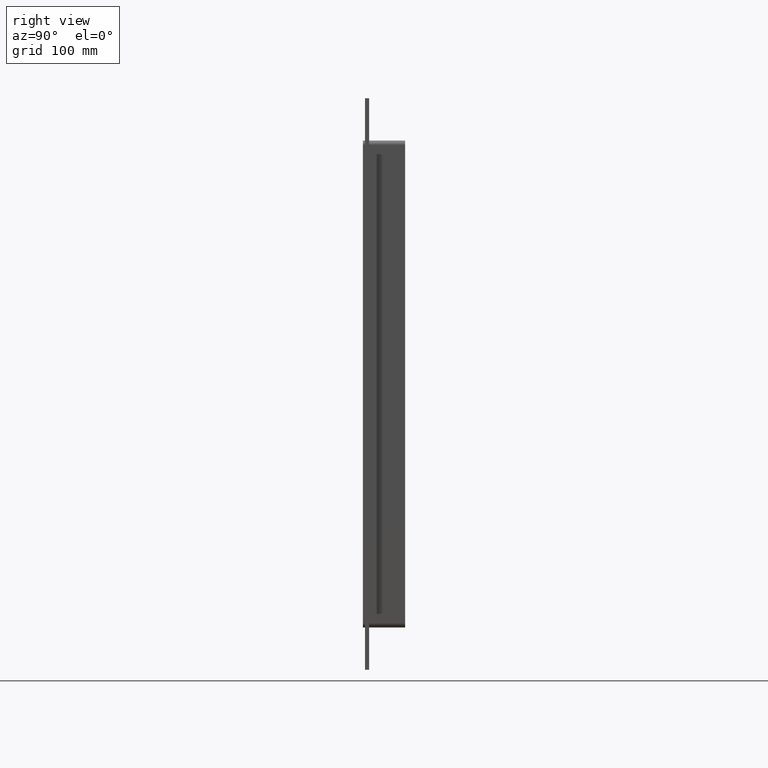
[diagram: clean part render]
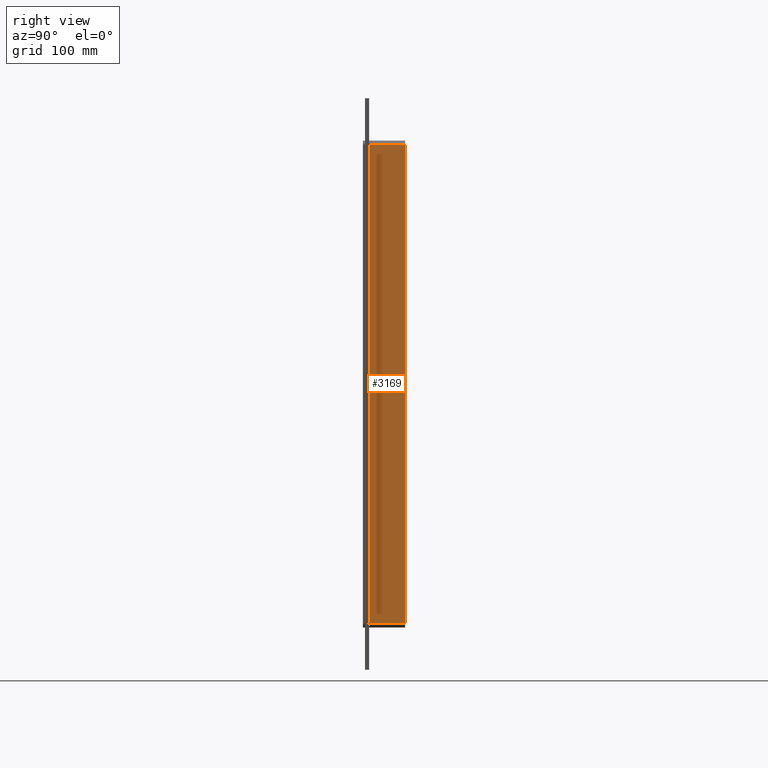
[diagram: same view with one face highlighted and labeled with its STEP entity id]
A machine part, right view. The second image highlights one B-rep face of the part: STEP entity #3169.
In plain terms, the highlighted planar face has unit normal (1, 0, 0).
Its self-contained STEP definition (entity closure, byte-faithful):
#1489=CARTESIAN_POINT('',(262.00000000000006,57.0,-339.00000000000006));
#1490=VERTEX_POINT('',#1489);
#1540=CARTESIAN_POINT('',(262.00000000000006,57.0,339.0));
#1541=VERTEX_POINT('',#1540);
#1549=CARTESIAN_POINT('',(262.00000000000006,57.0,339.0));
#1550=DIRECTION('',(0.0,0.0,-1.0));
#1551=VECTOR('',#1550,678.0);
#1552=LINE('',#1549,#1551);
#1553=EDGE_CURVE('',#1541,#1490,#1552,.T.);
#2766=CARTESIAN_POINT('',(262.00000000000006,6.000000000000001,-339.00000000000006));
#2767=VERTEX_POINT('',#2766);
#2775=CARTESIAN_POINT('',(262.00000000000006,6.000000000000001,339.0));
#2776=VERTEX_POINT('',#2775);
#2777=CARTESIAN_POINT('',(262.00000000000006,6.000000000000001,339.0));
#2778=DIRECTION('',(0.0,0.0,-1.0));
#2779=VECTOR('',#2778,678.0);
#2780=LINE('',#2777,#2779);
#2781=EDGE_CURVE('',#2776,#2767,#2780,.T.);
#3120=CARTESIAN_POINT('',(262.00000000000006,6.000000000000001,339.0));
#3121=DIRECTION('',(0.0,1.0,0.0));
#3122=VECTOR('',#3121,51.0);
#3123=LINE('',#3120,#3122);
#3124=EDGE_CURVE('',#2776,#1541,#3123,.T.);
#3153=CARTESIAN_POINT('',(262.00000000000006,0.0,345.0));
#3154=DIRECTION('',(1.0,0.0,0.0));
#3155=DIRECTION('',(0.0,0.0,-1.0));
#3156=AXIS2_PLACEMENT_3D('',#3153,#3154,#3155);
#3157=PLANE('',#3156);
#3158=ORIENTED_EDGE('',*,*,#2781,.T.);
#3159=CARTESIAN_POINT('',(262.00000000000006,57.0,-339.00000000000006));
#3160=DIRECTION('',(0.0,-1.0,0.0));
#3161=VECTOR('',#3160,51.0);
#3162=LINE('',#3159,#3161);
#3163=EDGE_CURVE('',#1490,#2767,#3162,.T.);
#3164=ORIENTED_EDGE('',*,*,#3163,.F.);
#3165=ORIENTED_EDGE('',*,*,#1553,.F.);
#3166=ORIENTED_EDGE('',*,*,#3124,.F.);
#3167=EDGE_LOOP('',(#3158,#3164,#3165,#3166));
#3168=FACE_OUTER_BOUND('',#3167,.T.);
#3169=ADVANCED_FACE('',(#3168),#3157,.T.);